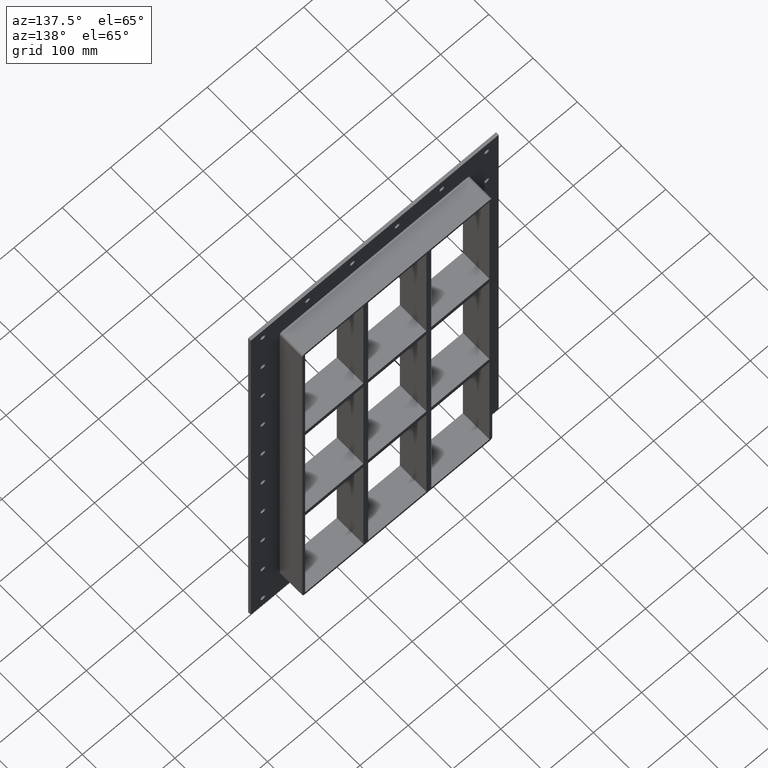
[diagram: clean part render]
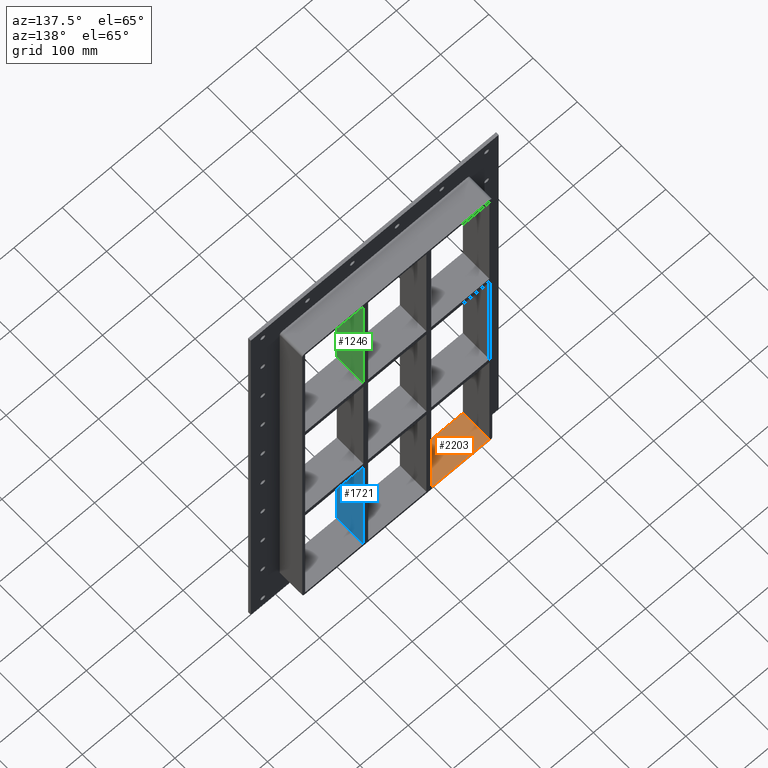
[diagram: same view with three faces highlighted in distinct colors, each labeled with its STEP entity id]
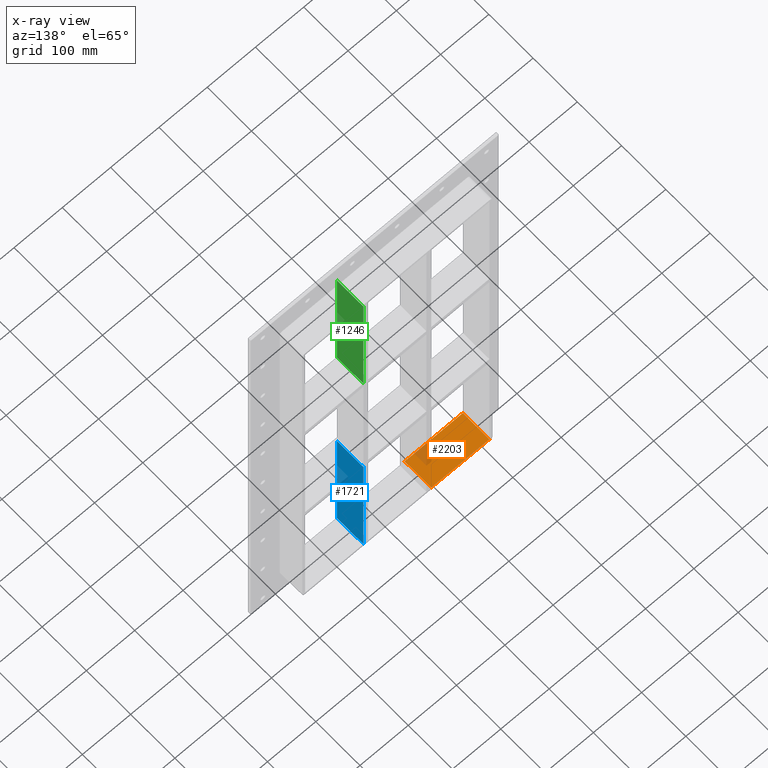
[diagram: x-ray of the same camera — body ghosted, the three highlighted faces saturated]
A machine part, auxiliary view with three faces highlighted in distinct colors.
The next image is the same camera in x-ray (body ghosted, the three faces saturated) — at least one of them is partly hidden behind the body in this view.
Their STEP definitions:

[orange] entity #2203 — the highlighted planar face has unit normal (0, 0, -1).
#1500=CARTESIAN_POINT('',(-190.75000000000003,57.0,-429.00000000000006));
#1501=VERTEX_POINT('',#1500);
#1508=CARTESIAN_POINT('',(-70.250000000001307,57.0,-429.00000000000006));
#1509=VERTEX_POINT('',#1508);
#1510=CARTESIAN_POINT('',(-190.75000000000006,57.0,-429.00000000000006));
#1511=DIRECTION('',(1.0,0.0,0.0));
#1512=VECTOR('',#1511,120.49999999999876);
#1513=LINE('',#1510,#1512);
#1514=EDGE_CURVE('',#1501,#1509,#1513,.T.);
#1971=CARTESIAN_POINT('',(-70.250000000001307,-3.0,-429.00000000000006));
#1972=VERTEX_POINT('',#1971);
#1979=CARTESIAN_POINT('',(-190.75000000000003,-3.0,-429.00000000000006));
#1980=VERTEX_POINT('',#1979);
#1981=CARTESIAN_POINT('',(-70.250000000001293,-3.0,-429.00000000000006));
#1982=DIRECTION('',(-1.0,0.0,0.0));
#1983=VECTOR('',#1982,120.49999999999876);
#1984=LINE('',#1981,#1983);
#1985=EDGE_CURVE('',#1972,#1980,#1984,.T.);
#2165=CARTESIAN_POINT('',(-70.250000000001307,-3.0,-429.00000000000006));
#2166=DIRECTION('',(0.0,1.0,0.0));
#2167=VECTOR('',#2166,60.000000000000007);
#2168=LINE('',#2165,#2167);
#2169=EDGE_CURVE('',#1972,#1509,#2168,.T.);
#2187=CARTESIAN_POINT('',(190.75000000000003,0.0,-429.00000000000006));
#2188=DIRECTION('',(0.0,0.0,-1.0));
#2189=DIRECTION('',(-1.0,0.0,0.0));
#2190=AXIS2_PLACEMENT_3D('',#2187,#2188,#2189);
#2191=PLANE('',#2190);
#2192=ORIENTED_EDGE('',*,*,#2169,.T.);
#2193=ORIENTED_EDGE('',*,*,#1514,.F.);
#2194=CARTESIAN_POINT('',(-190.75000000000003,-3.0,-429.00000000000006));
#2195=DIRECTION('',(0.0,1.0,0.0));
#2196=VECTOR('',#2195,60.0);
#2197=LINE('',#2194,#2196);
#2198=EDGE_CURVE('',#1980,#1501,#2197,.T.);
#2199=ORIENTED_EDGE('',*,*,#2198,.F.);
#2200=ORIENTED_EDGE('',*,*,#1985,.F.);
#2201=EDGE_LOOP('',(#2192,#2193,#2199,#2200));
#2202=FACE_OUTER_BOUND('',#2201,.T.);
#2203=ADVANCED_FACE('',(#2202),#2191,.F.);

[blue] entity #1721 — the highlighted planar face has unit normal (1, 0, 0).
#1577=CARTESIAN_POINT('',(70.250000000003638,57.0,-428.99999999998431));
#1578=VERTEX_POINT('',#1577);
#1595=CARTESIAN_POINT('',(70.250000000003638,57.0,-151.00000000000932));
#1596=VERTEX_POINT('',#1595);
#1603=CARTESIAN_POINT('',(70.250000000003638,57.0,-151.00000000000927));
#1604=DIRECTION('',(0.0,0.0,-1.0));
#1605=VECTOR('',#1604,277.99999999997499);
#1606=LINE('',#1603,#1605);
#1607=EDGE_CURVE('',#1596,#1578,#1606,.T.);
#1691=CARTESIAN_POINT('',(70.250000000003638,-3.0,429.00000000000006));
#1692=DIRECTION('',(1.0,0.0,0.0));
#1693=DIRECTION('',(0.0,0.0,-1.0));
#1694=AXIS2_PLACEMENT_3D('',#1691,#1692,#1693);
#1695=PLANE('',#1694);
#1696=CARTESIAN_POINT('',(70.250000000003638,-3.0,-151.00000000000932));
#1697=VERTEX_POINT('',#1696);
#1698=CARTESIAN_POINT('',(70.250000000003638,-3.0,-151.00000000000929));
#1699=DIRECTION('',(0.0,1.0,0.0));
#1700=VECTOR('',#1699,60.0);
#1701=LINE('',#1698,#1700);
#1702=EDGE_CURVE('',#1697,#1596,#1701,.T.);
#1703=ORIENTED_EDGE('',*,*,#1702,.F.);
#1704=CARTESIAN_POINT('',(70.250000000003638,-3.0,-428.99999999998431));
#1705=VERTEX_POINT('',#1704);
#1706=CARTESIAN_POINT('',(70.250000000003638,-3.0,-151.00000000000927));
#1707=DIRECTION('',(0.0,0.0,-1.0));
#1708=VECTOR('',#1707,277.99999999997499);
#1709=LINE('',#1706,#1708);
#1710=EDGE_CURVE('',#1697,#1705,#1709,.T.);
#1711=ORIENTED_EDGE('',*,*,#1710,.T.);
#1712=CARTESIAN_POINT('',(70.250000000003638,57.000000000000007,-429.00000000000006));
#1713=DIRECTION('',(0.0,-1.0,0.0));
#1714=VECTOR('',#1713,60.000000000000007);
#1715=LINE('',#1712,#1714);
#1716=EDGE_CURVE('',#1578,#1705,#1715,.T.);
#1717=ORIENTED_EDGE('',*,*,#1716,.F.);
#1718=ORIENTED_EDGE('',*,*,#1607,.F.);
#1719=EDGE_LOOP('',(#1703,#1711,#1717,#1718));
#1720=FACE_OUTER_BOUND('',#1719,.T.);
#1721=ADVANCED_FACE('',(#1720),#1695,.T.);

[green] entity #1246 — the highlighted planar face has unit normal (1, 0, 0).
#1017=CARTESIAN_POINT('',(70.250000000003638,-3.0,150.99999999999994));
#1018=VERTEX_POINT('',#1017);
#1019=CARTESIAN_POINT('',(70.250000000003638,57.0,150.99999999999994));
#1020=VERTEX_POINT('',#1019);
#1021=CARTESIAN_POINT('',(70.250000000003638,-3.0,150.99999999999994));
#1022=DIRECTION('',(0.0,1.0,0.0));
#1023=VECTOR('',#1022,60.0);
#1024=LINE('',#1021,#1023);
#1025=EDGE_CURVE('',#1018,#1020,#1024,.T.);
#1216=CARTESIAN_POINT('',(70.250000000003638,-3.0,429.00000000000006));
#1217=DIRECTION('',(1.0,0.0,0.0));
#1218=DIRECTION('',(0.0,0.0,-1.0));
#1219=AXIS2_PLACEMENT_3D('',#1216,#1217,#1218);
#1220=PLANE('',#1219);
#1221=ORIENTED_EDGE('',*,*,#1025,.T.);
#1222=CARTESIAN_POINT('',(70.250000000003638,57.0,429.00000000000006));
#1223=VERTEX_POINT('',#1222);
#1224=CARTESIAN_POINT('',(70.250000000003638,57.0,429.00000000000006));
#1225=DIRECTION('',(0.0,0.0,-1.0));
#1226=VECTOR('',#1225,278.00000000000011);
#1227=LINE('',#1224,#1226);
#1228=EDGE_CURVE('',#1223,#1020,#1227,.T.);
#1229=ORIENTED_EDGE('',*,*,#1228,.F.);
#1230=CARTESIAN_POINT('',(70.250000000003638,-3.0,429.00000000000006));
#1231=VERTEX_POINT('',#1230);
#1232=CARTESIAN_POINT('',(70.250000000003638,-3.0,429.0));
#1233=DIRECTION('',(0.0,1.0,0.0));
#1234=VECTOR('',#1233,60.000000000000007);
#1235=LINE('',#1232,#1234);
#1236=EDGE_CURVE('',#1231,#1223,#1235,.T.);
#1237=ORIENTED_EDGE('',*,*,#1236,.F.);
#1238=CARTESIAN_POINT('',(70.250000000003638,-3.0,429.00000000000006));
#1239=DIRECTION('',(0.0,0.0,-1.0));
#1240=VECTOR('',#1239,278.00000000000011);
#1241=LINE('',#1238,#1240);
#1242=EDGE_CURVE('',#1231,#1018,#1241,.T.);
#1243=ORIENTED_EDGE('',*,*,#1242,.T.);
#1244=EDGE_LOOP('',(#1221,#1229,#1237,#1243));
#1245=FACE_OUTER_BOUND('',#1244,.T.);
#1246=ADVANCED_FACE('',(#1245),#1220,.T.);